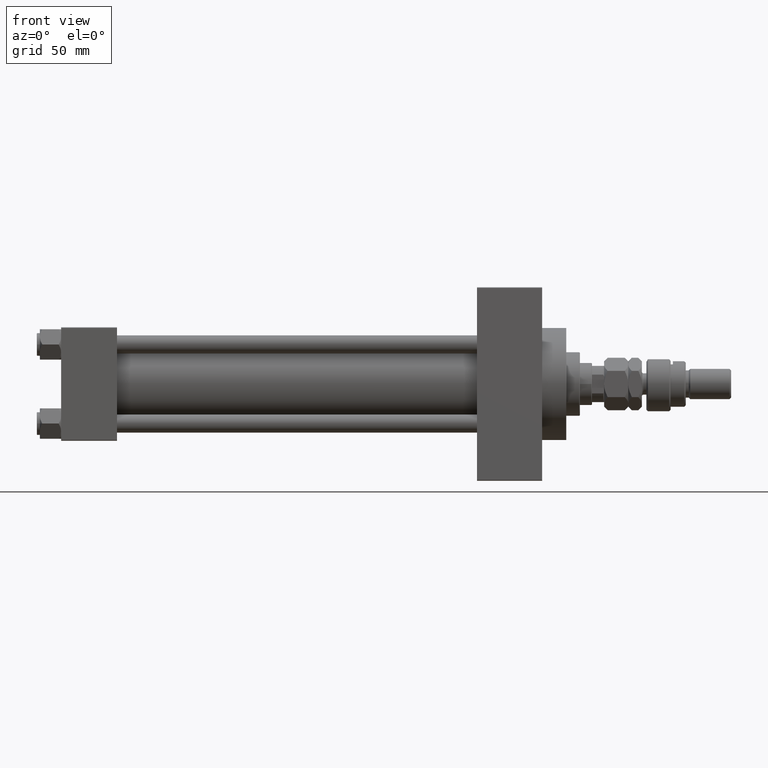
[diagram: clean part render]
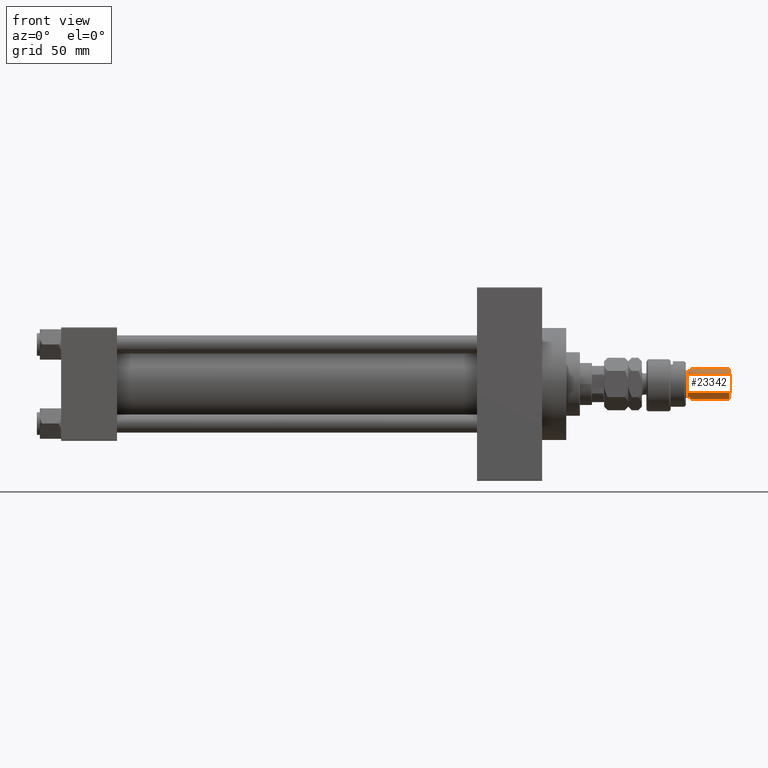
[diagram: same view with one face highlighted and labeled with its STEP entity id]
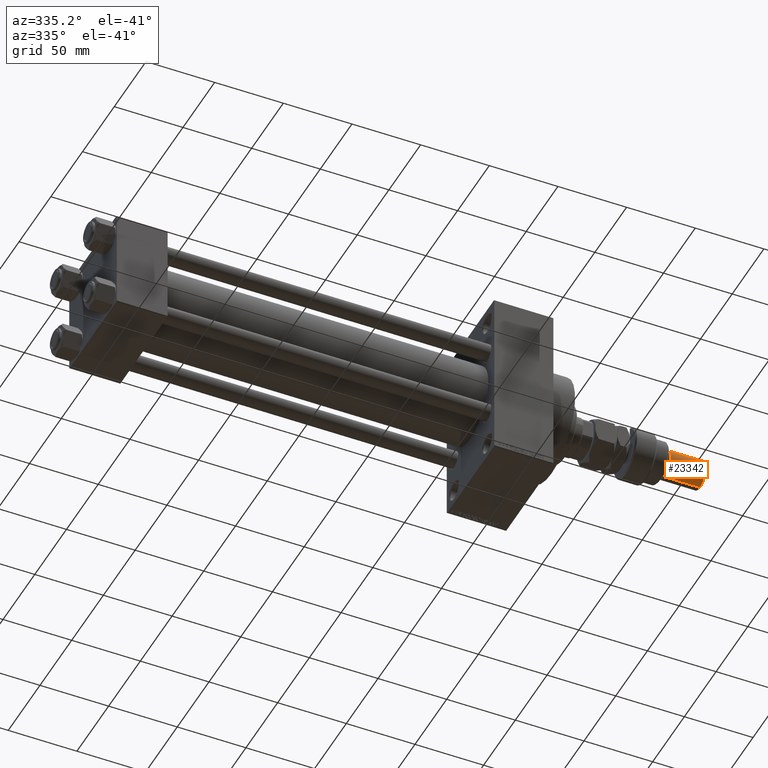
[diagram: same view with one face highlighted and labeled with its STEP entity id]
A machine part, front view. The second image highlights one B-rep face of the part: STEP entity #23342.
A second angle (auxiliary view) of the same face is appended — the face is thin or edge-on in the first view.
In plain terms, the highlighted cylindrical surface (edge-blend (fillet) strip) has radius 10 mm, axis along (-1, -0, 0).
Its self-contained STEP definition (entity closure, byte-faithful):
#629 = DIRECTION ( 'NONE',  ( 1.000000000000000000, 0.000000000000000000, 0.000000000000000000 ) ) ;
#1290 = VERTEX_POINT ( 'NONE', #7138 ) ;
#1728 = EDGE_CURVE ( 'NONE', #1290, #42231, #36951, .T. ) ;
#4790 = ORIENTED_EDGE ( 'NONE', *, *, #1728, .T. ) ;
#5740 = VERTEX_POINT ( 'NONE', #39041 ) ;
#7056 = AXIS2_PLACEMENT_3D ( 'NONE', #9000, #13237, #37840 ) ;
#7138 = CARTESIAN_POINT ( 'NONE',  ( 10.00000000000000000, 1.224646799147353256E-15, 54.99999999999998579 ) ) ;
#9000 = CARTESIAN_POINT ( 'NONE',  ( 0.000000000000000000, 0.000000000000000000, 56.00000000000000711 ) ) ;
#11933 = ORIENTED_EDGE ( 'NONE', *, *, #15193, .T. ) ;
#13237 = DIRECTION ( 'NONE',  ( -0.000000000000000000, -0.000000000000000000, -1.000000000000000000 ) ) ;
#14135 = AXIS2_PLACEMENT_3D ( 'NONE', #36469, #45189, #32506 ) ;
#15193 = EDGE_CURVE ( 'NONE', #42231, #5740, #29235, .T. ) ;
#15982 = DIRECTION ( 'NONE',  ( -0.000000000000000000, -0.000000000000000000, -1.000000000000000000 ) ) ;
#17911 = VECTOR ( 'NONE', #15982, 1000.000000000000000 ) ;
#18069 = EDGE_CURVE ( 'NONE', #1290, #39426, #47720, .T. ) ;
#21707 = CYLINDRICAL_SURFACE ( 'NONE', #7056, 10.00000000000000000 ) ;
#23118 = CIRCLE ( 'NONE', #29068, 10.00000000000000000 ) ;
#23342 = ADVANCED_FACE ( 'NONE', ( #45258 ), #21707, .T. ) ;
#23896 = ORIENTED_EDGE ( 'NONE', *, *, #47769, .T. ) ;
#23924 = CARTESIAN_POINT ( 'NONE',  ( 10.00000000000000000, 1.224646799147353256E-15, 56.00000000000000711 ) ) ;
#25278 = CARTESIAN_POINT ( 'NONE',  ( 0.000000000000000000, 0.000000000000000000, 29.00000000000000711 ) ) ;
#29068 = AXIS2_PLACEMENT_3D ( 'NONE', #25278, #49347, #629 ) ;
#29235 = LINE ( 'NONE', #40610, #17911 ) ;
#31398 = CARTESIAN_POINT ( 'NONE',  ( 10.00000000000000000, 1.224646799147353256E-15, 29.00000000000000711 ) ) ;
#32506 = DIRECTION ( 'NONE',  ( 1.000000000000000000, 0.000000000000000000, 0.000000000000000000 ) ) ;
#36469 = CARTESIAN_POINT ( 'NONE',  ( 0.000000000000000000, 0.000000000000000000, 54.99999999999998579 ) ) ;
#36951 = CIRCLE ( 'NONE', #14135, 10.00000000000000000 ) ;
#37840 = DIRECTION ( 'NONE',  ( -1.000000000000000000, 0.000000000000000000, 0.000000000000000000 ) ) ;
#38295 = VECTOR ( 'NONE', #40579, 1000.000000000000000 ) ;
#39041 = CARTESIAN_POINT ( 'NONE',  ( -10.00000000000000000, 0.000000000000000000, 29.00000000000000711 ) ) ;
#39426 = VERTEX_POINT ( 'NONE', #31398 ) ;
#40579 = DIRECTION ( 'NONE',  ( -0.000000000000000000, -0.000000000000000000, -1.000000000000000000 ) ) ;
#40610 = CARTESIAN_POINT ( 'NONE',  ( -10.00000000000000000, 0.000000000000000000, 56.00000000000000711 ) ) ;
#41910 = CARTESIAN_POINT ( 'NONE',  ( -10.00000000000000000, 0.000000000000000000, 54.99999999999998579 ) ) ;
#42231 = VERTEX_POINT ( 'NONE', #41910 ) ;
#43920 = ORIENTED_EDGE ( 'NONE', *, *, #18069, .F. ) ;
#45189 = DIRECTION ( 'NONE',  ( 0.000000000000000000, 0.000000000000000000, -1.000000000000000000 ) ) ;
#45258 = FACE_OUTER_BOUND ( 'NONE', #49623, .T. ) ;
#47720 = LINE ( 'NONE', #23924, #38295 ) ;
#47769 = EDGE_CURVE ( 'NONE', #5740, #39426, #23118, .T. ) ;
#49347 = DIRECTION ( 'NONE',  ( -0.000000000000000000, -0.000000000000000000, 1.000000000000000000 ) ) ;
#49623 = EDGE_LOOP ( 'NONE', ( #43920, #4790, #11933, #23896 ) ) ;